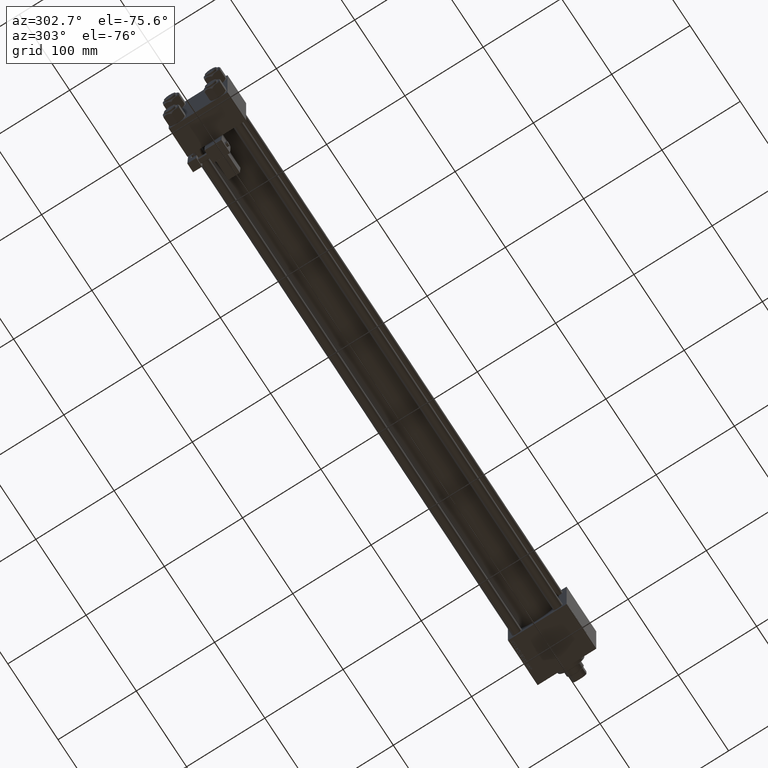
[diagram: clean part render]
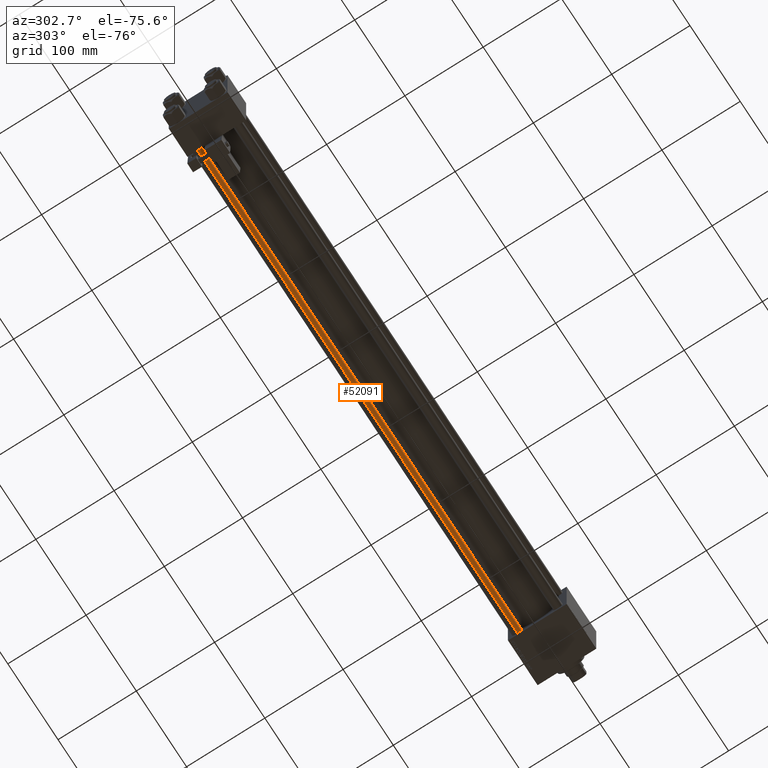
[diagram: same view with one face highlighted and labeled with its STEP entity id]
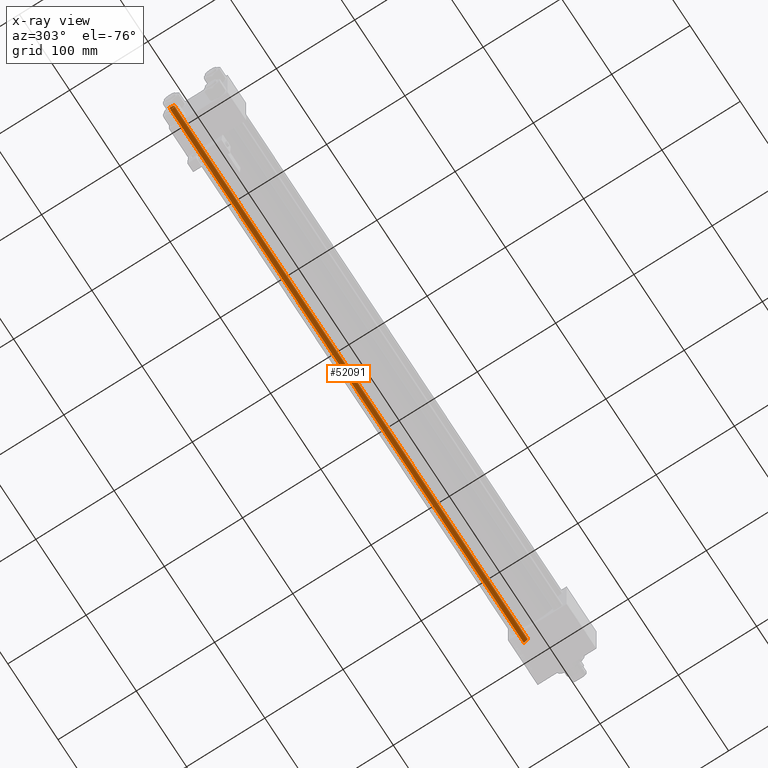
[diagram: x-ray of the same camera — body ghosted, the highlighted face saturated]
A machine part, auxiliary view. The second image highlights one B-rep face of the part: STEP entity #52091.
The next image is the same camera in x-ray: the body ghosted, the highlighted face saturated — about 0% of this face is hidden behind the body in this view.
In plain terms, the highlighted cylindrical surface (edge-blend (fillet) strip) has radius 6 mm, axis along (1, -0, 0).
Its self-contained STEP definition (entity closure, byte-faithful):
#262 = AXIS2_PLACEMENT_3D ( 'NONE', #40855, #4442, #16657 ) ;
#1312 = CARTESIAN_POINT ( 'NONE',  ( -6.000000000000000888, 0.000000000000000000, 703.5000000000000000 ) ) ;
#2732 = VERTEX_POINT ( 'NONE', #1312 ) ;
#3638 = AXIS2_PLACEMENT_3D ( 'NONE', #50165, #13241, #21230 ) ;
#4166 = ORIENTED_EDGE ( 'NONE', *, *, #25410, .T. ) ;
#4442 = DIRECTION ( 'NONE',  ( -0.000000000000000000, -0.000000000000000000, -1.000000000000000000 ) ) ;
#5399 = EDGE_CURVE ( 'NONE', #35166, #2732, #45219, .T. ) ;
#5783 = CIRCLE ( 'NONE', #35489, 6.000000000000000888 ) ;
#6747 = CARTESIAN_POINT ( 'NONE',  ( -6.000000000000000888, 0.000000000000000000, 704.0000000000000000 ) ) ;
#7966 = EDGE_CURVE ( 'NONE', #2732, #33168, #30667, .T. ) ;
#8155 = ORIENTED_EDGE ( 'NONE', *, *, #5399, .T. ) ;
#9578 = DIRECTION ( 'NONE',  ( -0.000000000000000000, -0.000000000000000000, -1.000000000000000000 ) ) ;
#13241 = DIRECTION ( 'NONE',  ( 0.000000000000000000, 0.000000000000000000, -1.000000000000000000 ) ) ;
#16211 = EDGE_CURVE ( 'NONE', #35166, #47202, #42005, .T. ) ;
#16657 = DIRECTION ( 'NONE',  ( -1.000000000000000000, 0.000000000000000000, 0.000000000000000000 ) ) ;
#17505 = VECTOR ( 'NONE', #9578, 1000.000000000000000 ) ;
#17814 = CARTESIAN_POINT ( 'NONE',  ( -6.000000000000000888, 0.000000000000000000, 0.4999999999998339106 ) ) ;
#18070 = CARTESIAN_POINT ( 'NONE',  ( 6.000000000000000888, 7.347880794884120722E-16, 704.0000000000000000 ) ) ;
#21230 = DIRECTION ( 'NONE',  ( 1.000000000000000000, 0.000000000000000000, 0.000000000000000000 ) ) ;
#24517 = CARTESIAN_POINT ( 'NONE',  ( 6.000000000000000888, 7.347880794884120722E-16, 703.5000000000000000 ) ) ;
#25410 = EDGE_CURVE ( 'NONE', #33168, #47202, #5783, .T. ) ;
#30667 = LINE ( 'NONE', #6747, #46127 ) ;
#32618 = FACE_OUTER_BOUND ( 'NONE', #32681, .T. ) ;
#32681 = EDGE_LOOP ( 'NONE', ( #35046, #8155, #44146, #4166 ) ) ;
#33168 = VERTEX_POINT ( 'NONE', #17814 ) ;
#33406 = CYLINDRICAL_SURFACE ( 'NONE', #262, 6.000000000000000888 ) ;
#35046 = ORIENTED_EDGE ( 'NONE', *, *, #16211, .F. ) ;
#35166 = VERTEX_POINT ( 'NONE', #24517 ) ;
#35489 = AXIS2_PLACEMENT_3D ( 'NONE', #38845, #38323, #46810 ) ;
#38323 = DIRECTION ( 'NONE',  ( -0.000000000000000000, -0.000000000000000000, 1.000000000000000000 ) ) ;
#38845 = CARTESIAN_POINT ( 'NONE',  ( 0.000000000000000000, 0.000000000000000000, 0.4999999999998339106 ) ) ;
#39173 = DIRECTION ( 'NONE',  ( -0.000000000000000000, -0.000000000000000000, -1.000000000000000000 ) ) ;
#39640 = CARTESIAN_POINT ( 'NONE',  ( 6.000000000000000888, 7.347880794884120722E-16, 0.4999999999998339106 ) ) ;
#40855 = CARTESIAN_POINT ( 'NONE',  ( 0.000000000000000000, 0.000000000000000000, 704.0000000000000000 ) ) ;
#42005 = LINE ( 'NONE', #18070, #17505 ) ;
#44146 = ORIENTED_EDGE ( 'NONE', *, *, #7966, .T. ) ;
#45219 = CIRCLE ( 'NONE', #3638, 6.000000000000000888 ) ;
#46127 = VECTOR ( 'NONE', #39173, 1000.000000000000000 ) ;
#46810 = DIRECTION ( 'NONE',  ( 1.000000000000000000, 0.000000000000000000, 0.000000000000000000 ) ) ;
#47202 = VERTEX_POINT ( 'NONE', #39640 ) ;
#50165 = CARTESIAN_POINT ( 'NONE',  ( 0.000000000000000000, 0.000000000000000000, 703.5000000000000000 ) ) ;
#52091 = ADVANCED_FACE ( 'NONE', ( #32618 ), #33406, .T. ) ;